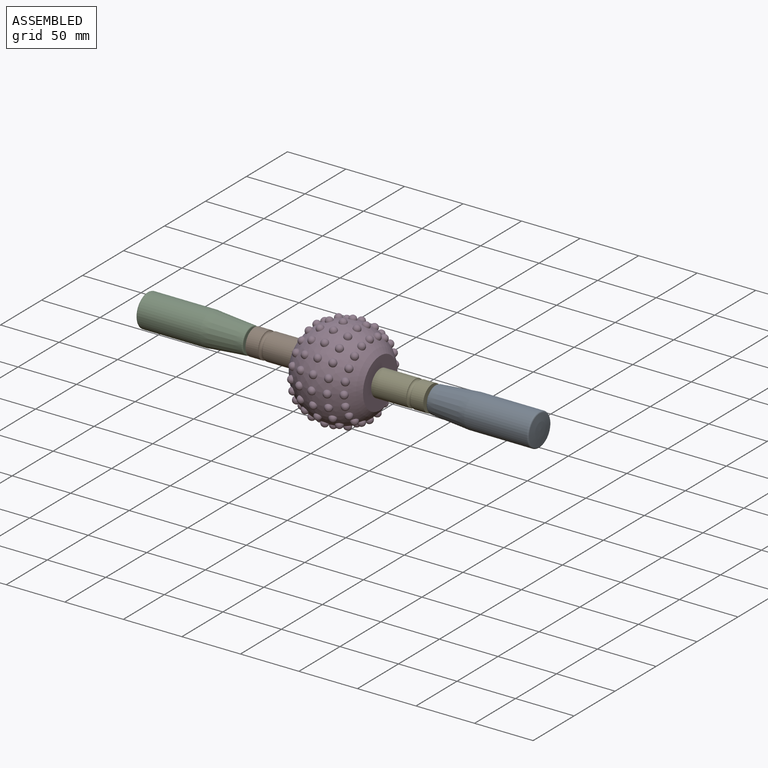
[diagram: assembled view]
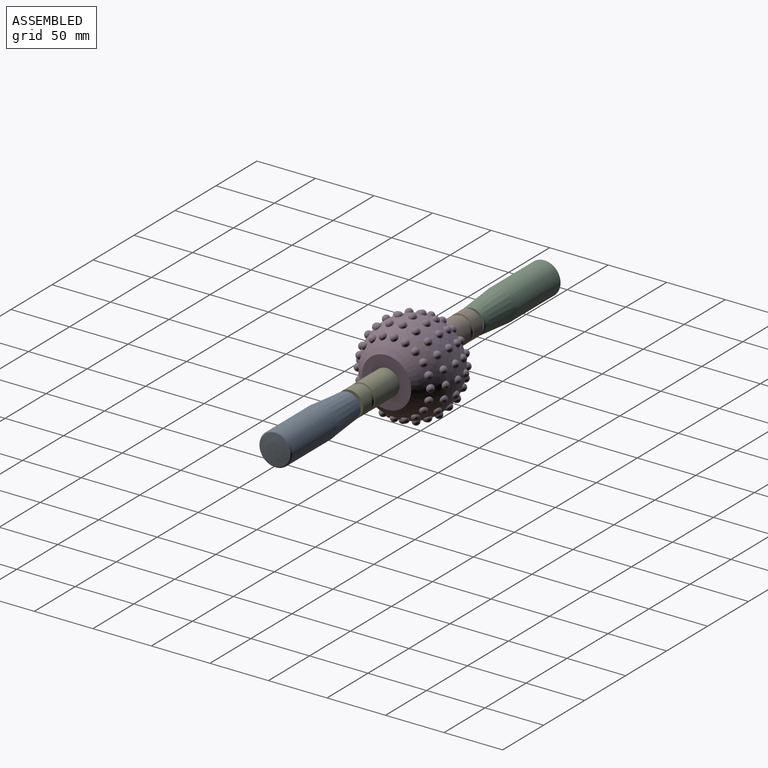
[diagram: assembled view, second angle]
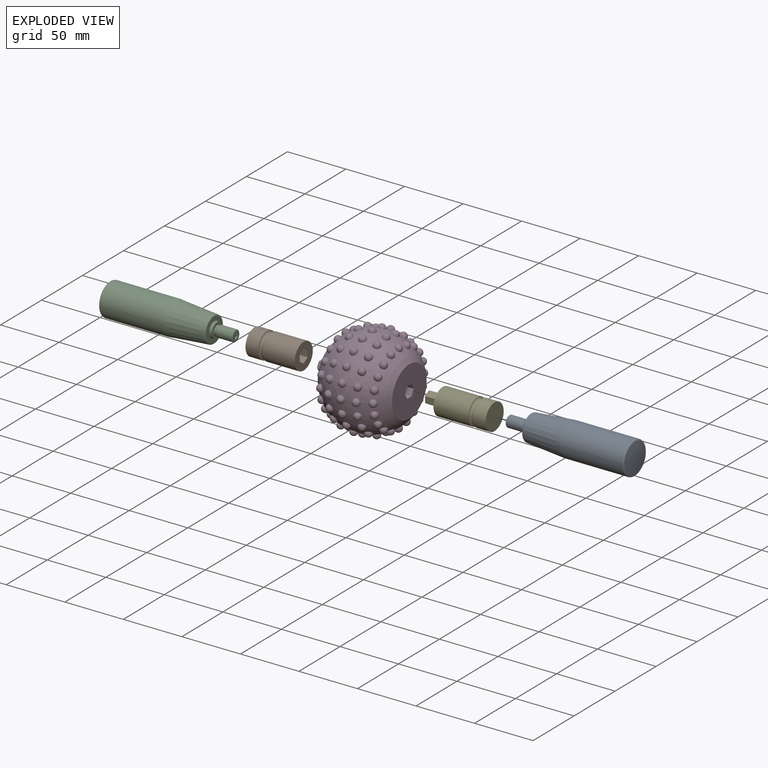
[diagram: exploded view]
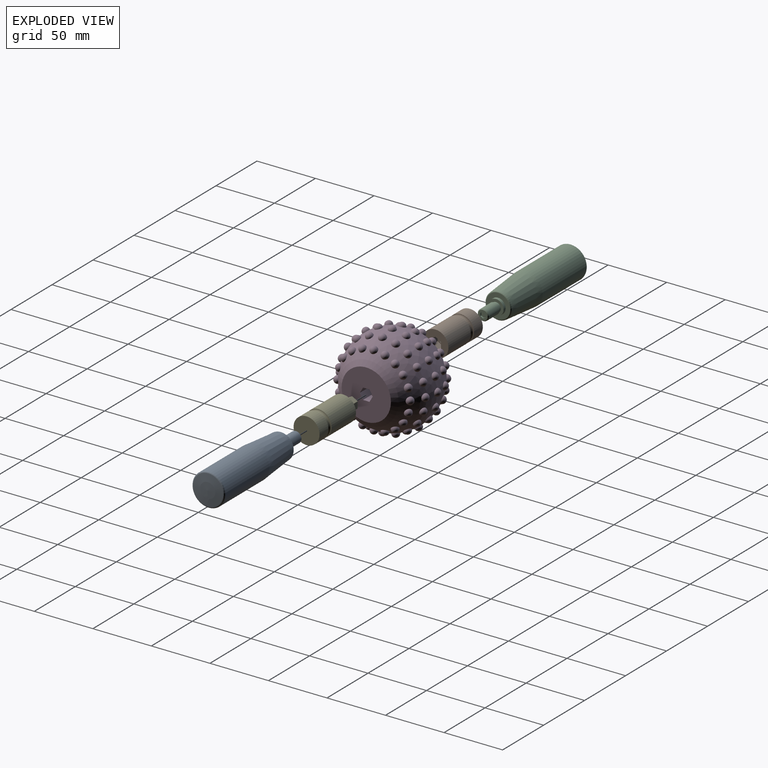
[diagram: exploded view, second angle]
ASSEMBLY  parts=5 mates=4
PART A: 20 faces, bbox 30.2x30.2x108.5 mm
  f0: cone r=12.55mm half-angle=4.8deg, axis (0,0,1), area 2656.7mm2, adj f1,f2
  f1: torus R=10.19mm, axis (0,0,-1), area 94.5mm2, adj f0,f5
  f2: cylinder r=13.97mm len=53.4mm, axis (0,0,-1), area 4687.2mm2, adj f0,f3
  f3: torus R=12.7mm, axis (0,0,-1), area 156.4mm2, adj f2,f4
  f4: sphere r=102.01mm, area 521.6mm2, adj f3
  f5: plane 20.37x20.37mm, normal (0,0,-1), area 194.1mm2, adj f1,f6
  f6: cylinder r=6.48mm len=12.95mm, axis (0,0,-1), area 103.4mm2, adj f5,f7
  f7: plane 12.95x12.95mm, normal (0,0,-1), area 78.3mm2, adj f6,f8
  f8: cylinder r=4.13mm len=8.26mm, axis (0,0,1), area 44mm2, adj f7,f9
  f9: cone r=4.45mm half-angle=45deg, axis (0,0,-1), area 25.1mm2, adj f8,f10
  f10: cylinder r=4.76mm len=13.04mm, axis (0,0,-1), area 390.1mm2, adj f9,f11
  f11: cone r=4.45mm half-angle=45deg, axis (0,0,1), area 25.1mm2, adj f10,f12
  f12: plane 8.26x8.26mm, normal (0,0,-1), area 37.3mm2, adj f11,f13,f14,f15,f16,f17,f18
  f13: plane 2.17x1.27mm, normal (0.87,-0.5,0), area 3.2mm2, adj f12,f14,f18,f19
  f14: plane 2.17x1.27mm, normal (0.87,0.5,0), area 3.2mm2, adj f12,f13,f15,f19
  f15: plane 2.5x1.27mm, normal (0,1,0), area 3.2mm2, adj f12,f14,f16,f19
  f16: plane 2.17x1.27mm, normal (-0.87,0.5,0), area 3.2mm2, adj f12,f15,f17,f19
  f17: plane 2.17x1.27mm, normal (-0.87,-0.5,0), area 3.2mm2, adj f12,f16,f18,f19
  f18: plane 2.5x1.27mm, normal (0,-1,0), area 3.2mm2, adj f12,f13,f17,f19
  f19: plane 5x4.33mm, normal (0,0,-1), area 16.3mm2, adj f13,f14,f15,f16,f17,f18
PART B: 13 faces, bbox 41.9x27x27 mm
  f0: cylinder r=11.11mm len=22.23mm, axis (1,0,0), area 753.7mm2, adj f3,f12
  f1: cylinder r=11.11mm len=27.34mm, axis (1,0,0), area 1909.1mm2, adj f2,f12
  f2: plane 22.23x22.23mm, normal (1,0,0), area 308.5mm2, adj f1,f4,f5,f6,f7,f8,f9
  f3: plane 22.23x22.23mm, normal (-1,0,0), area 338.5mm2, adj f0,f11
  f4: plane 9.53x4.79mm, normal (0,-0.5,-0.87), area 52.7mm2, adj f2,f5,f9,f10
  f5: plane 9.53x4.79mm, normal (0,0.5,-0.87), area 52.7mm2, adj f2,f4,f6,f10
  f6: plane 9.53x5.53mm, normal (0,1,0), area 52.7mm2, adj f2,f5,f7,f10
  f7: plane 9.53x4.79mm, normal (0,0.5,0.87), area 52.7mm2, adj f2,f6,f8,f10
  f8: plane 9.53x4.79mm, normal (0,-0.5,0.87), area 52.7mm2, adj f2,f7,f9,f10
  f9: plane 9.53x5.53mm, normal (0,-1,0), area 52.7mm2, adj f2,f4,f8,f10
  f10: plane 11.06x9.58mm, normal (1,0,0), area 29.9mm2, adj f4,f5,f6,f7,f8,f9,f11
  f11: cylinder r=3.97mm len=32.42mm, axis (-1,0,0), area 808.5mm2, adj f3,f10
  f12: torus R=11.11mm, axis (-1,0,0), area 372.3mm2, adj f0,f1
PART C: same geometry as A
PART D: 123 faces, bbox 76.2x82.6x82.6 mm
  f0: plane 42.12x42.12mm, normal (-1,0,0), area 1314.9mm2, adj f1,f110,f111,f112,f113,f114,f115
  f1: sphere r=38.1mm, area 12034.3mm2, adj f0,f2,f3,f4,f5,f6,f7,f8
  f2: plane 42.12x42.12mm, normal (1,0,0), area 1314.9mm2, adj f1,f103,f104,f105,f106,f107,f108
  f3: sphere r=3.17mm, area 66mm2, adj f1
  f4: sphere r=3.17mm, area 66mm2, adj f1
  f5: sphere r=3.17mm, area 66mm2, adj f1
  f6: sphere r=3.17mm, area 66mm2, adj f1
  f7: sphere r=3.17mm, area 66mm2, adj f1
  f8: sphere r=3.17mm, area 66mm2, adj f1
  f9: sphere r=3.17mm, area 66mm2, adj f1
  f10: sphere r=3.17mm, area 66mm2, adj f1
  f11: sphere r=3.17mm, area 66mm2, adj f1
  f12: sphere r=3.17mm, area 66mm2, adj f1
  f13: sphere r=3.17mm, area 66mm2, adj f1
  f14: sphere r=3.17mm, area 66mm2, adj f1
  f15: sphere r=3.17mm, area 66mm2, adj f1
  f16: sphere r=3.17mm, area 66mm2, adj f1
  f17: sphere r=3.17mm, area 66mm2, adj f1
  f18: sphere r=3.17mm, area 66mm2, adj f1
  f19: sphere r=3.17mm, area 66mm2, adj f1
  f20: sphere r=3.17mm, area 66mm2, adj f1
  f21: sphere r=3.17mm, area 66mm2, adj f1
  f22: sphere r=3.17mm, area 66mm2, adj f1
  f23: sphere r=3.17mm, area 66mm2, adj f1
  f24: sphere r=3.17mm, area 66mm2, adj f1
  f25: sphere r=3.17mm, area 66mm2, adj f1
  f26: sphere r=3.17mm, area 66mm2, adj f1
  f27: sphere r=3.17mm, area 66mm2, adj f1
  f28: sphere r=3.17mm, area 66mm2, adj f1
  f29: sphere r=3.17mm, area 66mm2, adj f1
  f30: sphere r=3.17mm, area 66mm2, adj f1
  f31: sphere r=3.17mm, area 66mm2, adj f1
  f32: sphere r=3.17mm, area 66mm2, adj f1
  f33: sphere r=3.17mm, area 66mm2, adj f1
  f34: sphere r=3.17mm, area 66mm2, adj f1
  f35: sphere r=3.17mm, area 66mm2, adj f1
  f36: sphere r=3.17mm, area 66mm2, adj f1
  f37: sphere r=3.17mm, area 66mm2, adj f1
  f38: sphere r=3.17mm, area 66mm2, adj f1
  f39: sphere r=3.17mm, area 66mm2, adj f1
  f40: sphere r=3.17mm, area 66mm2, adj f1
  f41: sphere r=3.17mm, area 66mm2, adj f1
  f42: sphere r=3.17mm, area 66mm2, adj f1
  f43: sphere r=3.17mm, area 66mm2, adj f1
  f44: sphere r=3.17mm, area 66mm2, adj f1
  f45: sphere r=3.17mm, area 66mm2, adj f1
  f46: sphere r=3.17mm, area 66mm2, adj f1
  f47: sphere r=3.17mm, area 66mm2, adj f1
  f48: sphere r=3.17mm, area 66mm2, adj f1
  f49: sphere r=3.17mm, area 66mm2, adj f1
  f50: sphere r=3.17mm, area 66mm2, adj f1
  f51: sphere r=3.17mm, area 66mm2, adj f1
  f52: sphere r=3.17mm, area 66mm2, adj f1
  f53: sphere r=3.17mm, area 66mm2, adj f1
  f54: sphere r=3.17mm, area 66mm2, adj f1
  f55: sphere r=3.17mm, area 66mm2, adj f1
  f56: sphere r=3.17mm, area 66mm2, adj f1
  f57: sphere r=3.17mm, area 66mm2, adj f1
  f58: sphere r=3.17mm, area 66mm2, adj f1
  f59: sphere r=3.17mm, area 66mm2, adj f1
  f60: sphere r=3.17mm, area 66mm2, adj f1
  f61: sphere r=3.17mm, area 66mm2, adj f1
  f62: sphere r=3.17mm, area 66mm2, adj f1
  f63: sphere r=3.17mm, area 66mm2, adj f1
  f64: sphere r=3.17mm, area 66mm2, adj f1
  f65: sphere r=3.17mm, area 66mm2, adj f1
  f66: sphere r=3.17mm, area 66mm2, adj f1
  f67: sphere r=3.17mm, area 66mm2, adj f1
  f68: sphere r=3.17mm, area 66mm2, adj f1
  f69: sphere r=3.17mm, area 66mm2, adj f1
  f70: sphere r=3.17mm, area 66mm2, adj f1
  f71: sphere r=3.17mm, area 66mm2, adj f1
  f72: sphere r=3.17mm, area 66mm2, adj f1
  f73: sphere r=3.17mm, area 66mm2, adj f1
  f74: sphere r=3.17mm, area 66mm2, adj f1
  f75: sphere r=3.17mm, area 66mm2, adj f1
  f76: sphere r=3.17mm, area 66mm2, adj f1
  f77: sphere r=3.17mm, area 66mm2, adj f1
  f78: sphere r=3.17mm, area 66mm2, adj f1
  f79: sphere r=3.17mm, area 66mm2, adj f1
  f80: sphere r=3.17mm, area 66mm2, adj f1
  f81: sphere r=3.17mm, area 66mm2, adj f1
  f82: sphere r=3.17mm, area 66mm2, adj f1
  f83: sphere r=3.17mm, area 66mm2, adj f1
  f84: sphere r=3.17mm, area 66mm2, adj f1
  f85: sphere r=3.17mm, area 66mm2, adj f1
  f86: sphere r=3.17mm, area 66mm2, adj f1
  f87: sphere r=3.17mm, area 66mm2, adj f1
  f88: sphere r=3.17mm, area 66mm2, adj f1
  f89: sphere r=3.17mm, area 66mm2, adj f1
  f90: sphere r=3.17mm, area 66mm2, adj f1
  f91: sphere r=3.17mm, area 66mm2, adj f1
  f92: sphere r=3.17mm, area 66mm2, adj f1
  f93: sphere r=3.17mm, area 66mm2, adj f1
  f94: sphere r=3.17mm, area 66mm2, adj f1
  f95: sphere r=3.17mm, area 66mm2, adj f1
  f96: sphere r=3.17mm, area 66mm2, adj f1
  f97: sphere r=3.17mm, area 66mm2, adj f1
  f98: sphere r=3.17mm, area 66mm2, adj f1
  f99: sphere r=3.17mm, area 66mm2, adj f1
  f100: sphere r=3.17mm, area 66mm2, adj f1
  f101: sphere r=3.17mm, area 66mm2, adj f1
  f102: sphere r=3.17mm, area 66mm2, adj f1
  f103: plane 12.7x4.76mm, normal (0,-0.87,0.5), area 69.8mm2, adj f2,f104,f108,f109
  f104: plane 12.7x5.5mm, normal (0,0,1), area 69.8mm2, adj f2,f103,f105,f109
  f105: plane 12.7x4.76mm, normal (0,0.87,0.5), area 69.8mm2, adj f2,f104,f106,f109
  f106: plane 12.7x4.76mm, normal (0,0.87,-0.5), area 69.8mm2, adj f2,f105,f107,f109
  f107: plane 12.7x5.5mm, normal (0,0,-1), area 69.8mm2, adj f2,f106,f108,f109
  f108: plane 12.7x4.76mm, normal (0,-0.87,-0.5), area 69.8mm2, adj f2,f103,f107,f109
  f109: plane 11x9.53mm, normal (1,0,0), area 78.6mm2, adj f103,f104,f105,f106,f107,f108
  f110: plane 10.31x4.76mm, normal (0,-0.87,-0.5), area 56.7mm2, adj f0,f111,f115,f118
  f111: plane 10.31x4.76mm, normal (0,-0.87,0.5), area 56.7mm2, adj f0,f110,f112,f120
  f112: plane 10.31x5.5mm, normal (0,0,1), area 56.7mm2, adj f0,f111,f113,f122
  f113: plane 10.31x4.76mm, normal (0,0.87,0.5), area 56.7mm2, adj f0,f112,f114,f121
  f114: plane 10.31x4.76mm, normal (0,0.87,-0.5), area 56.7mm2, adj f0,f113,f115,f119
  f115: plane 10.31x5.5mm, normal (0,0,-1), area 56.7mm2, adj f0,f110,f114,f117
  f116: plane 5.48x4.75mm, normal (-1,0,0), area 19.5mm2, adj f117,f118,f119,f120,f121,f122
  f117: cylinder r=2.39mm len=5.5mm, axis (0,1,0), area 16.9mm2, adj f115,f116,f118,f119
  f118: cylinder r=2.39mm len=5.96mm, axis (0,0.5,-0.87), area 16.9mm2, adj f110,f116,f117,f120
  f119: cylinder r=2.39mm len=5.96mm, axis (0,0.5,0.87), area 16.9mm2, adj f114,f116,f117,f121
  f120: cylinder r=2.39mm len=5.96mm, axis (0,-0.5,-0.87), area 16.9mm2, adj f111,f116,f118,f122
  f121: cylinder r=2.39mm len=5.96mm, axis (0,-0.5,0.87), area 16.9mm2, adj f113,f116,f119,f122
  f122: cylinder r=2.39mm len=5.5mm, axis (0,-1,0), area 16.9mm2, adj f112,f116,f120,f121
PART E: 18 faces, bbox 57.2x27x27 mm
  f0: plane 22.23x22.23mm, normal (-1,0,0), area 309.4mm2, adj f1,f2,f3,f4,f5,f6,f7
  f1: cylinder r=11.11mm len=29.85mm, axis (-1,0,0), area 2083.8mm2, adj f0,f15
  f2: plane 10.32x4.76mm, normal (0,-0.5,-0.87), area 56.7mm2, adj f0,f3,f7,f10
  f3: plane 10.32x4.76mm, normal (0,0.5,-0.87), area 56.7mm2, adj f0,f2,f4,f9
  f4: plane 10.32x5.5mm, normal (0,1,0), area 56.7mm2, adj f0,f3,f5,f11
  f5: plane 10.32x4.76mm, normal (0,0.5,0.87), area 56.7mm2, adj f0,f4,f6,f13
  f6: plane 10.32x4.76mm, normal (0,-0.5,0.87), area 56.7mm2, adj f0,f5,f7,f14
  f7: plane 10.32x5.5mm, normal (0,-1,0), area 56.7mm2, adj f0,f2,f6,f12
  f8: plane 5.5x4.76mm, normal (-1,0,0), area 19.6mm2, adj f9,f10,f11,f12,f13,f14
  f9: cylinder r=2.38mm len=5.95mm, axis (0,-0.87,-0.5), area 16.8mm2, adj f3,f8,f10,f11
  f10: cylinder r=2.38mm len=5.95mm, axis (0,-0.87,0.5), area 16.8mm2, adj f2,f8,f9,f12
  f11: cylinder r=2.38mm len=5.5mm, axis (0,0,-1), area 16.8mm2, adj f4,f8,f9,f13
  f12: cylinder r=2.38mm len=5.5mm, axis (0,0,1), area 16.8mm2, adj f7,f8,f10,f14
  f13: cylinder r=2.38mm len=5.95mm, axis (0,0.87,-0.5), area 16.8mm2, adj f5,f8,f11,f14
  f14: cylinder r=2.38mm len=5.95mm, axis (0,0.87,0.5), area 16.8mm2, adj f6,f8,f12,f13
  f15: torus R=11.11mm, axis (1,0,0), area 372.3mm2, adj f1,f17
  f16: plane 22.23x22.23mm, normal (1,0,0), area 387.9mm2, adj f17
  f17: cylinder r=11.11mm len=22.23mm, axis (-1,0,0), area 753.7mm2, adj f15,f16
PLACE A rot(axis=(0,1,0),90deg) t=(27.08,-8.08,26.82)mm
PLACE B t=(-83.41,-10.83,31.58)mm
PLACE C rot(axis=(0.71,0,-0.71),180deg) t=(-127.9,-10.83,31.58)mm
PLACE D t=(-51.66,-8.08,26.82)mm
PLACE E t=(-19.91,-8.08,26.82)mm
MATE revolute C.f0 <-> B.f0  axis (1,0,0) through (-125.36,-10.83,31.58)mm
MATE fastened E.f1 <-> A.f0  axis (1,0,0) through (24.54,-8.08,26.82)mm
MATE fastened E.f1 <-> D.f2  axis (-1,0,0) through (-19.91,-8.08,26.82)mm
MATE fastened D.f0 <-> B.f0  axis (1,0,0) through (-83.41,-10.83,31.58)mm
